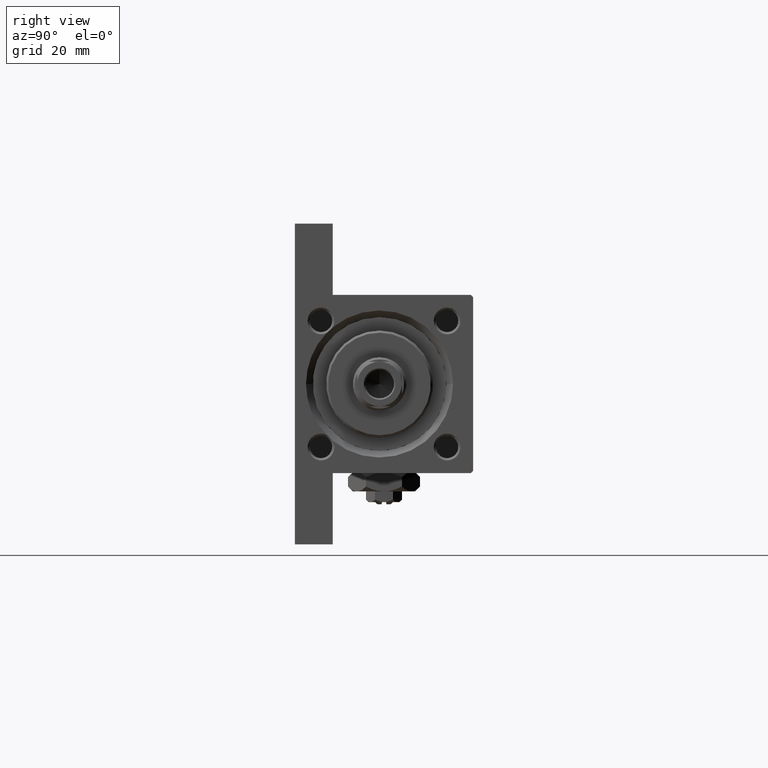
[diagram: clean part render]
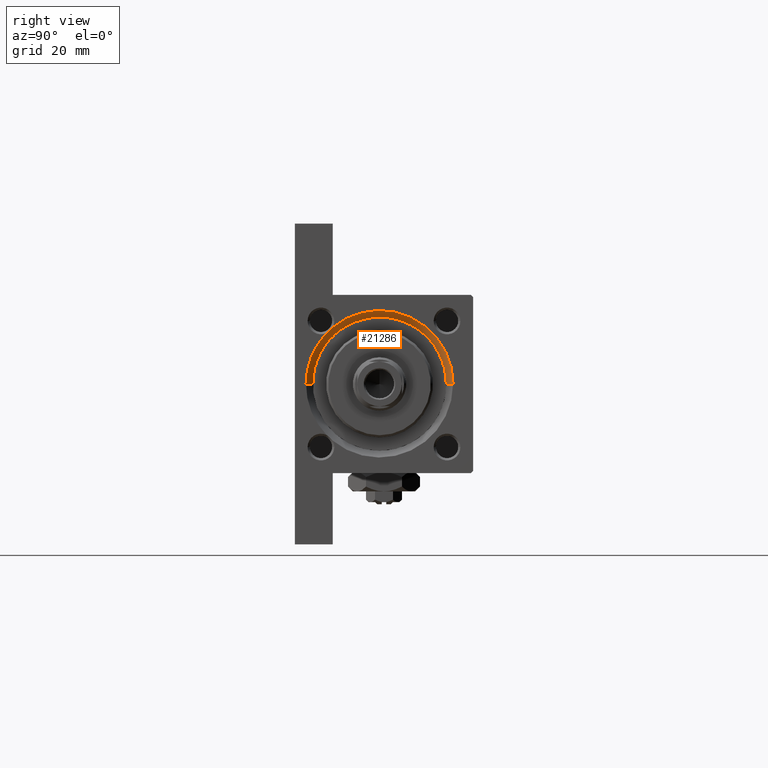
[diagram: same view with one face highlighted and labeled with its STEP entity id]
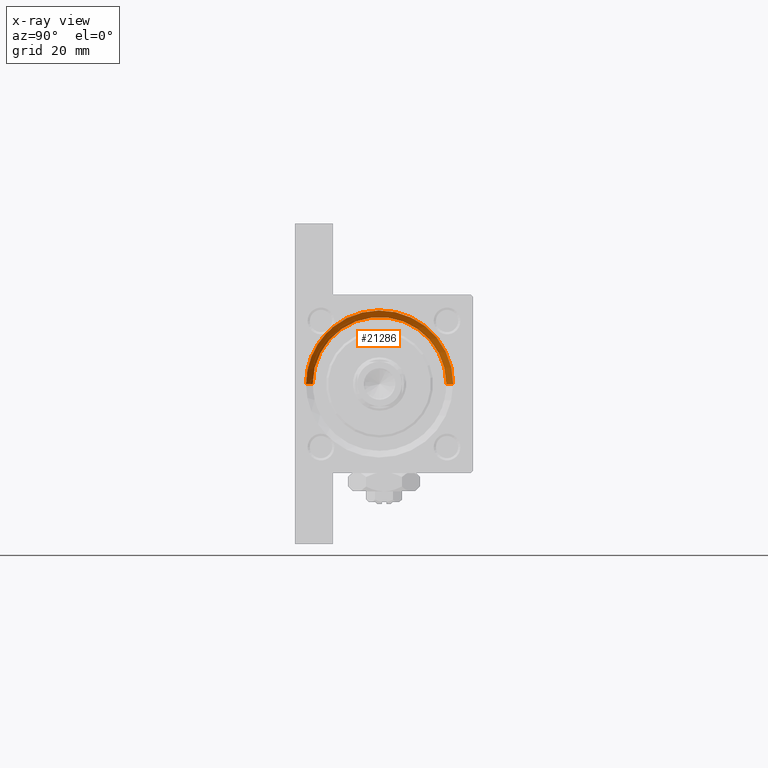
[diagram: x-ray of the same camera — body ghosted, the highlighted face saturated]
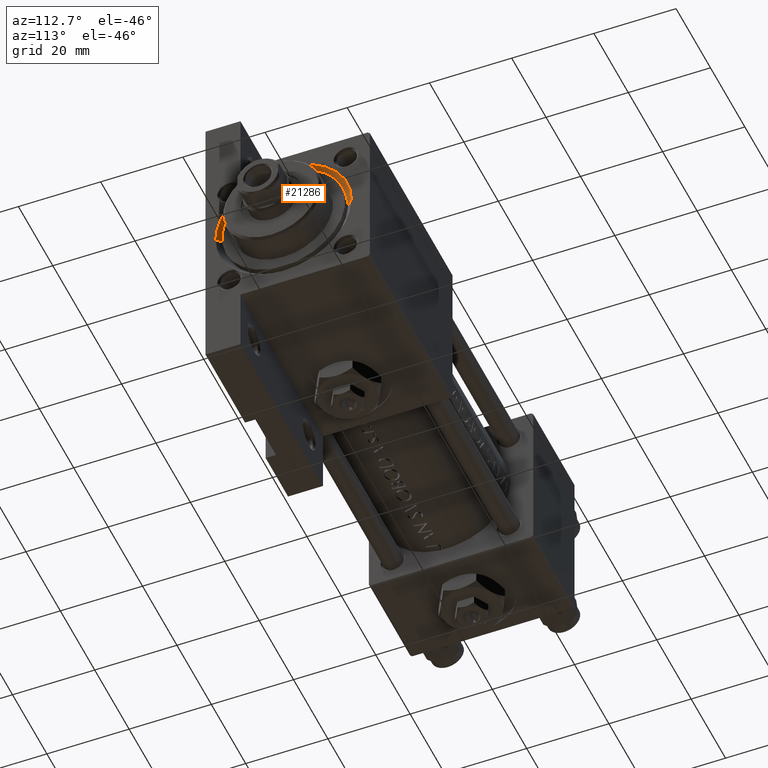
[diagram: same view with one face highlighted and labeled with its STEP entity id]
A machine part, right view. The second image highlights one B-rep face of the part: STEP entity #21286.
The next image is the same camera in x-ray: the body ghosted, the highlighted face saturated — about 0% of this face is hidden behind the body in this view.
A second angle (auxiliary view) of the same face is appended — the face is thin or edge-on in the first view.
In plain terms, the highlighted conical surface has half-angle 45 deg.
Its self-contained STEP definition (entity closure, byte-faithful):
#1817 = CARTESIAN_POINT ( 'NONE',  ( 118.9086984327258136, -12.23895966654462875, -11.93411783727694520 ) ) ;
#2662 = VERTEX_POINT ( 'NONE', #8472 ) ;
#4582 = CARTESIAN_POINT ( 'NONE',  ( 117.5000000000000000, 0.000000000000000000, -1.000000000000000888 ) ) ;
#5509 = DIRECTION ( 'NONE',  ( -1.000000000000000000, -0.000000000000000000, -0.000000000000000000 ) ) ;
#5593 = CARTESIAN_POINT ( 'NONE',  ( 119.0000000000000142, -12.71526989445523448, -11.51531794627061345 ) ) ;
#7314 = AXIS2_PLACEMENT_3D ( 'NONE', #26838, #7524, #38821 ) ;
#7524 = DIRECTION ( 'NONE',  ( 1.000000000000000000, 0.000000000000000000, 0.000000000000000000 ) ) ;
#8472 = CARTESIAN_POINT ( 'NONE',  ( 119.0000000000000142, -12.71526989445523448, -11.51531794627061345 ) ) ;
#8863 = LINE ( 'NONE', #42959, #38917 ) ;
#8917 = EDGE_CURVE ( 'NONE', #11250, #47186, #42210, .T. ) ;
#9323 = DIRECTION ( 'NONE',  ( 0.000000000000000000, 0.000000000000000000, 1.000000000000000000 ) ) ;
#9446 = VECTOR ( 'NONE', #36068, 1000.000000000000114 ) ;
#9574 = DIRECTION ( 'NONE',  ( -1.000000000000000000, -0.000000000000000000, -0.000000000000000000 ) ) ;
#11250 = VERTEX_POINT ( 'NONE', #32763 ) ;
#12403 = CARTESIAN_POINT ( 'NONE',  ( 118.9398626170885933, -11.60083618806273620, -12.65276146536946378 ) ) ;
#13373 = ORIENTED_EDGE ( 'NONE', *, *, #45142, .T. ) ;
#14054 = CARTESIAN_POINT ( 'NONE',  ( 119.0000000000000142, 0.000000000000000000, -1.000000000000000888 ) ) ;
#14210 = AXIS2_PLACEMENT_3D ( 'NONE', #14054, #5509, #47635 ) ;
#14268 = CARTESIAN_POINT ( 'NONE',  ( 119.0000000000000142, -11.41741110086830169, -12.91187322606187671 ) ) ;
#14865 = B_SPLINE_CURVE_WITH_KNOTS ( 'NONE', 3,
 ( #5593, #36171, #1817, #16166, #12403, #20901 ),
 .UNSPECIFIED., .F., .F.,
 ( 4, 2, 4 ),
 ( 0.000000000000000000, 0.0009549214274699147856, 0.001909842854939829571 ),
 .UNSPECIFIED. ) ;
#16166 = CARTESIAN_POINT ( 'NONE',  ( 118.9082653050944600, -11.80458798180323221, -12.40107693355586882 ) ) ;
#16671 = EDGE_LOOP ( 'NONE', ( #31432, #13373, #44462, #48014, #48273, #21558 ) ) ;
#19190 = CARTESIAN_POINT ( 'NONE',  ( 117.5000000000000000, 1.836970198721029589E-15, 13.99999999999999822 ) ) ;
#20389 = DIRECTION ( 'NONE',  ( 0.7071067811865474617, 0.000000000000000000, -0.7071067811865474617 ) ) ;
#20901 = CARTESIAN_POINT ( 'NONE',  ( 119.0000000000000142, -11.41741110086830169, -12.91187322606187671 ) ) ;
#21286 = ADVANCED_FACE ( 'NONE', ( #31089 ), #28956, .F. ) ;
#21558 = ORIENTED_EDGE ( 'NONE', *, *, #37376, .F. ) ;
#24210 = VERTEX_POINT ( 'NONE', #19190 ) ;
#24571 = LINE ( 'NONE', #25067, #9446 ) ;
#25067 = CARTESIAN_POINT ( 'NONE',  ( 117.5000000000000000, 1.836970198721029589E-15, 13.99999999999999822 ) ) ;
#25684 = EDGE_CURVE ( 'NONE', #2662, #37812, #33035, .T. ) ;
#26838 = CARTESIAN_POINT ( 'NONE',  ( 117.5000000000000000, 0.000000000000000000, -1.000000000000000888 ) ) ;
#28392 = CARTESIAN_POINT ( 'NONE',  ( 119.0000000000000142, 0.000000000000000000, -1.000000000000000888 ) ) ;
#28400 = AXIS2_PLACEMENT_3D ( 'NONE', #4582, #39393, #35417 ) ;
#28956 = CONICAL_SURFACE ( 'NONE', #7314, 15.00000000000000000, 0.7853981633974482790 ) ;
#31089 = FACE_OUTER_BOUND ( 'NONE', #16671, .T. ) ;
#31345 = EDGE_CURVE ( 'NONE', #24210, #49175, #48395, .T. ) ;
#31432 = ORIENTED_EDGE ( 'NONE', *, *, #31345, .F. ) ;
#32051 = CARTESIAN_POINT ( 'NONE',  ( 119.0000000000000142, 2.020667218593134678E-15, 15.50000000000001421 ) ) ;
#32763 = CARTESIAN_POINT ( 'NONE',  ( 119.0000000000000142, 0.000000000000000000, -17.50000000000001421 ) ) ;
#33035 = CIRCLE ( 'NONE', #37008, 16.50000000000001421 ) ;
#35417 = DIRECTION ( 'NONE',  ( 0.000000000000000000, 0.000000000000000000, 1.000000000000000000 ) ) ;
#36068 = DIRECTION ( 'NONE',  ( 0.7071067811865474617, 8.659560562354932858E-17, 0.7071067811865474617 ) ) ;
#36171 = CARTESIAN_POINT ( 'NONE',  ( 118.9399059431251260, -12.47044877148109343, -11.71706312667161676 ) ) ;
#37008 = AXIS2_PLACEMENT_3D ( 'NONE', #28392, #9574, #9323 ) ;
#37376 = EDGE_CURVE ( 'NONE', #49175, #11250, #8863, .T. ) ;
#37812 = VERTEX_POINT ( 'NONE', #32051 ) ;
#38821 = DIRECTION ( 'NONE',  ( 0.000000000000000000, 0.000000000000000000, -1.000000000000000000 ) ) ;
#38917 = VECTOR ( 'NONE', #20389, 1000.000000000000114 ) ;
#39294 = EDGE_CURVE ( 'NONE', #2662, #47186, #14865, .T. ) ;
#39393 = DIRECTION ( 'NONE',  ( 1.000000000000000000, 0.000000000000000000, 0.000000000000000000 ) ) ;
#42210 = CIRCLE ( 'NONE', #14210, 16.50000000000001421 ) ;
#42959 = CARTESIAN_POINT ( 'NONE',  ( 117.5000000000000000, 0.000000000000000000, -16.00000000000000000 ) ) ;
#44462 = ORIENTED_EDGE ( 'NONE', *, *, #25684, .F. ) ;
#45063 = CARTESIAN_POINT ( 'NONE',  ( 117.5000000000000000, 0.000000000000000000, -16.00000000000000000 ) ) ;
#45142 = EDGE_CURVE ( 'NONE', #24210, #37812, #24571, .T. ) ;
#47186 = VERTEX_POINT ( 'NONE', #14268 ) ;
#47635 = DIRECTION ( 'NONE',  ( 0.000000000000000000, 0.000000000000000000, 1.000000000000000000 ) ) ;
#48014 = ORIENTED_EDGE ( 'NONE', *, *, #39294, .T. ) ;
#48273 = ORIENTED_EDGE ( 'NONE', *, *, #8917, .F. ) ;
#48395 = CIRCLE ( 'NONE', #28400, 15.00000000000000000 ) ;
#49175 = VERTEX_POINT ( 'NONE', #45063 ) ;